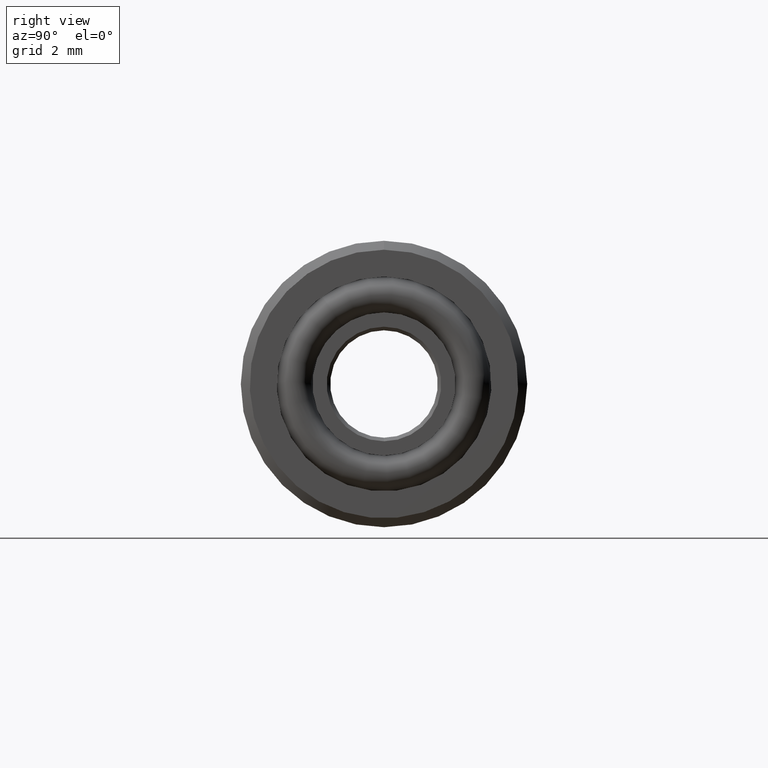
[diagram: clean part render]
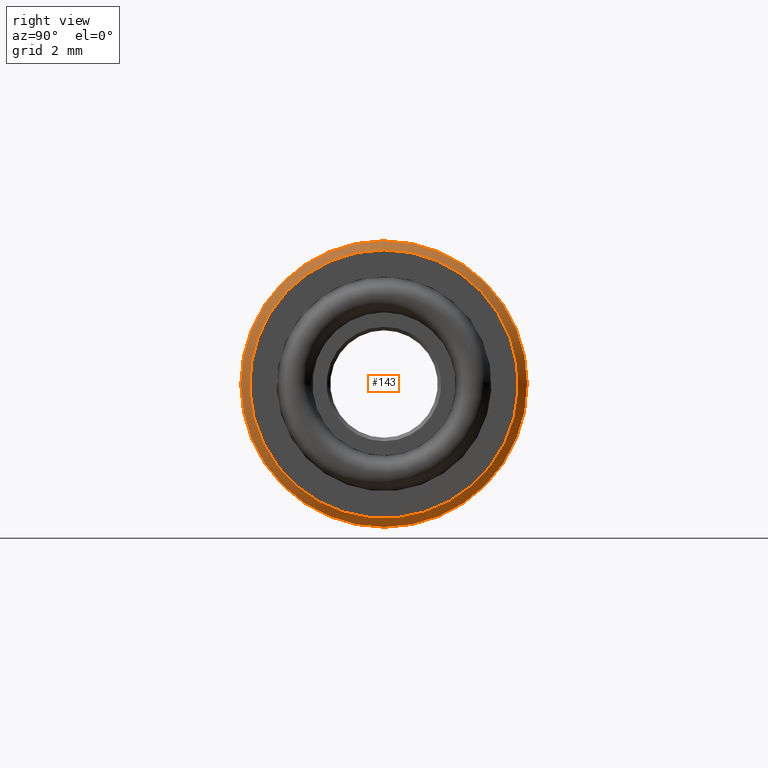
[diagram: same view with one face highlighted and labeled with its STEP entity id]
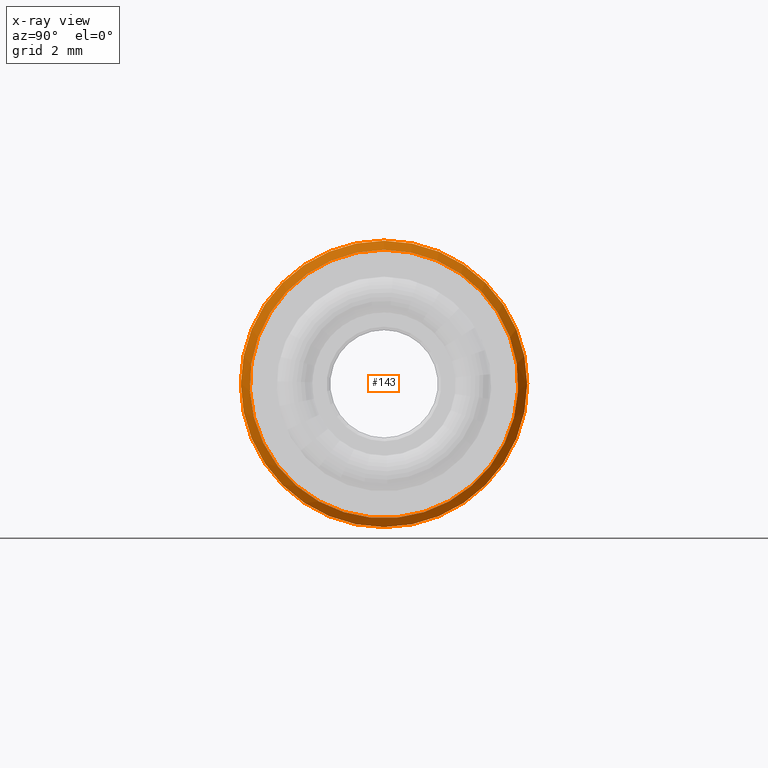
[diagram: x-ray of the same camera — body ghosted, the highlighted face saturated]
A machine part, right view. The second image highlights one B-rep face of the part: STEP entity #143.
The next image is the same camera in x-ray: the body ghosted, the highlighted face saturated — about 0% of this face is hidden behind the body in this view.
In plain terms, the highlighted conical surface has half-angle 45 deg.
Its self-contained STEP definition (entity closure, byte-faithful):
#143 = ADVANCED_FACE( '', ( #258, #259 ), #260, .T. );
#258 = FACE_BOUND( '', #392, .T. );
#259 = FACE_OUTER_BOUND( '', #393, .T. );
#260 = CONICAL_SURFACE( '', #394, 4.00000000000000, 0.785398163397448 );
#392 = EDGE_LOOP( '', ( #524 ) );
#393 = EDGE_LOOP( '', ( #525 ) );
#394 = AXIS2_PLACEMENT_3D( '', #526, #527, #528 );
#524 = ORIENTED_EDGE( '', *, *, #750, .F. );
#525 = ORIENTED_EDGE( '', *, *, #751, .F. );
#526 = CARTESIAN_POINT( '', ( -0.250000000000000, 0.000000000000000, 0.000000000000000 ) );
#527 = DIRECTION( '', ( -1.00000000000000, 0.000000000000000, -0.000000000000000 ) );
#528 = DIRECTION( '', ( 0.000000000000000, 0.000000000000000, 1.00000000000000 ) );
#750 = EDGE_CURVE( '', #838, #838, #839, .F. );
#751 = EDGE_CURVE( '', #840, #840, #841, .T. );
#838 = VERTEX_POINT( '', #968 );
#839 = CIRCLE( '', #969, 3.75000000000000 );
#840 = VERTEX_POINT( '', #970 );
#841 = CIRCLE( '', #971, 4.00000000000000 );
#968 = CARTESIAN_POINT( '', ( 0.000000000000000, 0.000000000000000, 3.75000000000000 ) );
#969 = AXIS2_PLACEMENT_3D( '', #1102, #1103, #1104 );
#970 = CARTESIAN_POINT( '', ( -0.250000000000000, 0.000000000000000, 4.00000000000000 ) );
#971 = AXIS2_PLACEMENT_3D( '', #1105, #1106, #1107 );
#1102 = CARTESIAN_POINT( '', ( 0.000000000000000, 0.000000000000000, 0.000000000000000 ) );
#1103 = DIRECTION( '', ( -1.00000000000000, 0.000000000000000, 0.000000000000000 ) );
#1104 = DIRECTION( '', ( 0.000000000000000, 0.000000000000000, 1.00000000000000 ) );
#1105 = CARTESIAN_POINT( '', ( -0.250000000000000, 0.000000000000000, 0.000000000000000 ) );
#1106 = DIRECTION( '', ( -1.00000000000000, 0.000000000000000, 0.000000000000000 ) );
#1107 = DIRECTION( '', ( 0.000000000000000, 0.000000000000000, 1.00000000000000 ) );